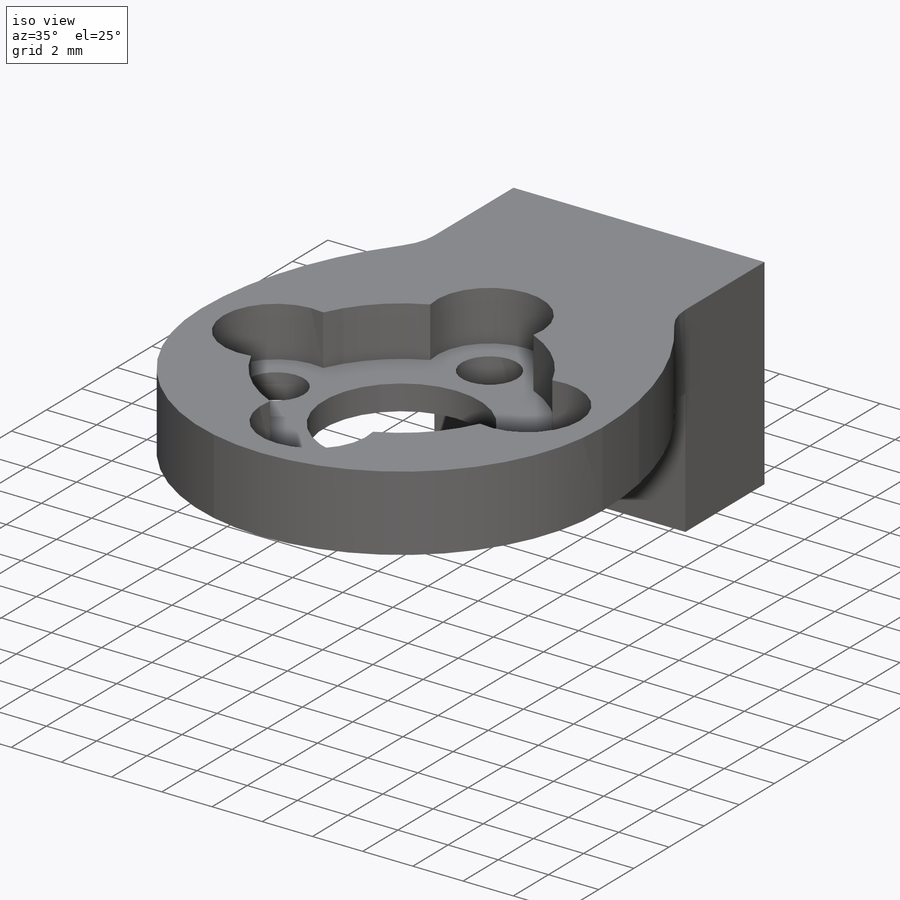
[diagram: iso view]
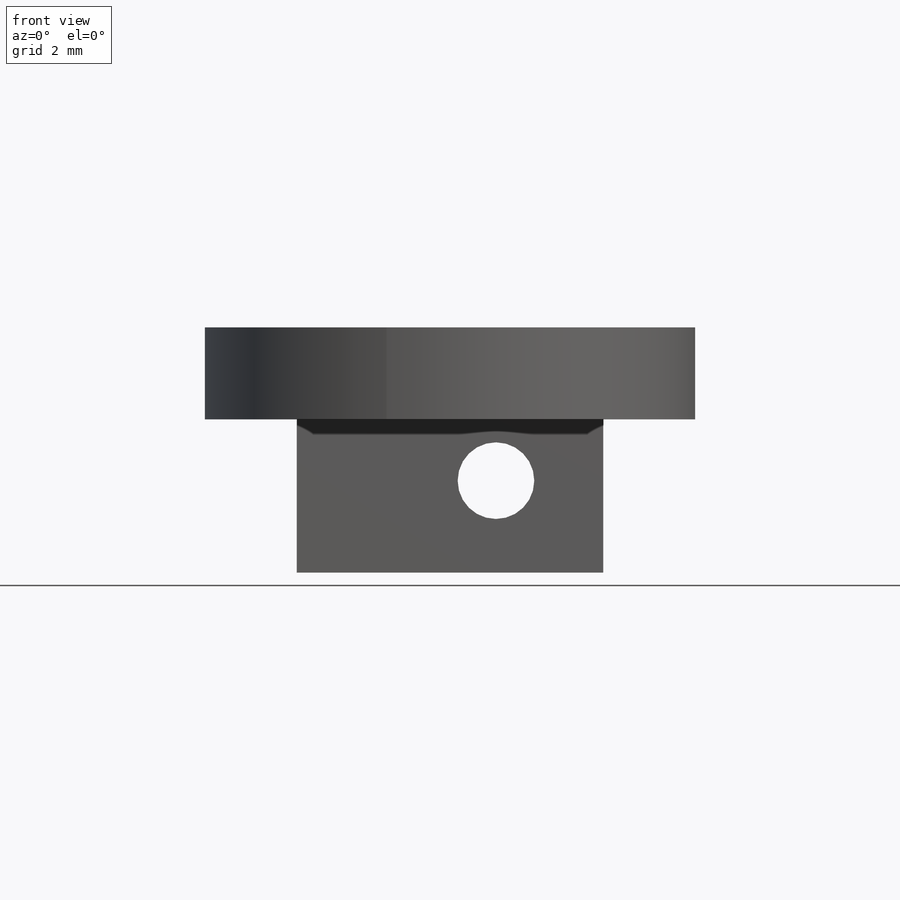
[diagram: front view]
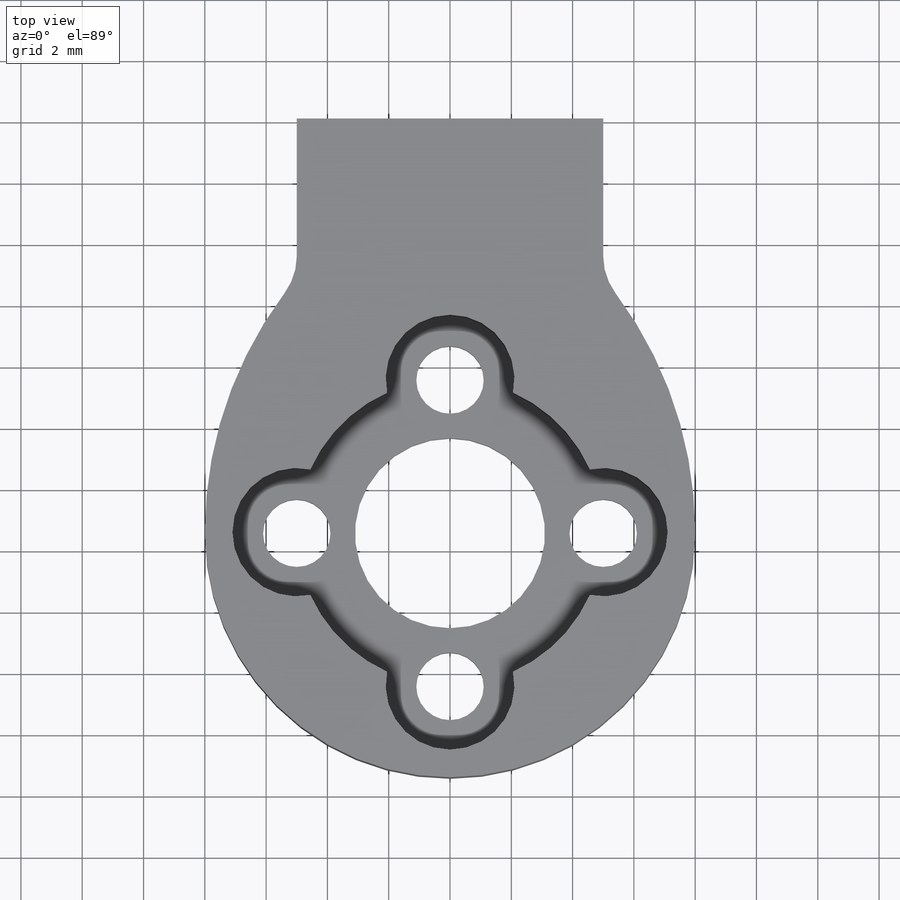
[diagram: top view]
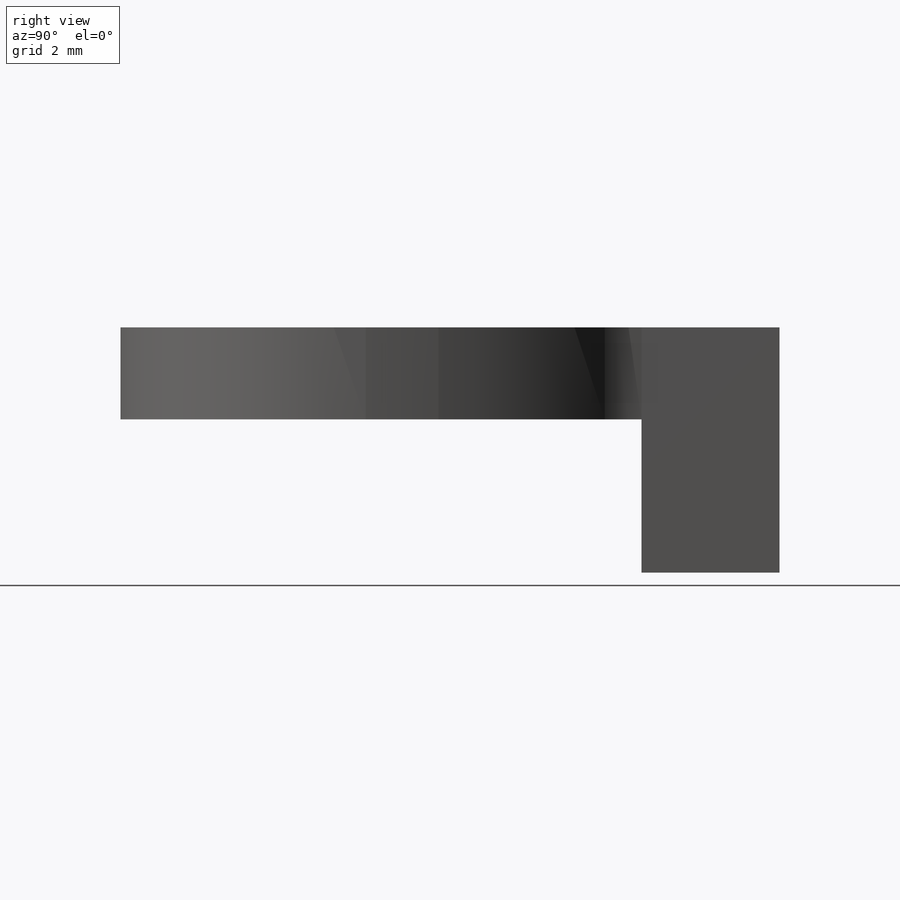
[diagram: right view]
SOLIDWORKS PART (.sldprt)
format: sldprt  version: not decoded by parser v0  size: 338,432 bytes
history: native  units: mm
features: sketch x13, hole x5, extrude x2, material x1, plane x1, cut_extrude x1, fillet x1 (+13 scaffold rows collapsed)
feature tree (37):
  scaffold x13  (default folders/planes/origin — collapsed)
  material  "Material <not specified>"
  plane  "Plane1"  Offset=3mm
  sketch  "Sketch1"
  extrude  "Boss-Extrude1"  Depth=3mm
  sketch  "Sketch2"
  extrude  "Boss-Extrude2"  Depth=5mm
  sketch  "Sketch3"
  cut_extrude  "Cut-Extrude1"  Depth=2mm
  hole  "Ø2.2 (2.2) Diameter Hole1"  Diameter=2.2mm Depth=6.000025mm
  sketch  "Sketch5"
  sketch  "Sketch4"  dims[hole-wizard template sketch: 60 standard entries collapsed; hole parameters kept: c18.Thru Hole Depth=~6.000025mm]
  hole  "Ø6.2 (6.2) Diameter Hole1"  Diameter=6.2mm Depth=3mm
  sketch  "Sketch7"
  sketch  "Sketch6"  dims[hole-wizard template sketch: 59 standard entries collapsed; hole parameters kept: c18.Thru Hole Dia.=6.2mm c18.Thru Hole Depth=3.0mm]
  hole  "Ø2.2 (2.2) Diameter Hole2"  Diameter=2.2mm Depth=3mm
  sketch  "Sketch9"
  sketch  "Sketch8"  dims[hole-wizard template sketch: 60 standard entries collapsed; hole parameters kept: c18.Thru Hole Depth=3.0mm]
  hole  "Ø2.5 (2.5) Diameter Hole1"  Diameter=2.5mm Depth=21.5mm
  sketch  "Sketch11"
  sketch  "Sketch10"  dims[hole-wizard template sketch: 60 standard entries collapsed; hole parameters kept: c18.Thru Hole Depth=21.5mm]
  hole  "Ø1.6 (1.6) Diameter Hole1"  Diameter=1.6mm Depth=4mm
  sketch  "Sketch13"
  sketch  "Sketch12"  dims[hole-wizard template sketch: 47 standard entries collapsed; hole parameters kept: c15.Hole Depth=4.0mm c15.D3=~14.816244mm c15.Drill Angle=118.0deg]
  fillet  "Fillet1"  Radius=2mm
decode coverage: 14 of 22 modeling features carry decoded parameters
note: ~ marks probable driven/reference dimensions
summary: Diameter pulled from absorbed wizard sketch
note: suppression state not decoded; provenance and decode notes live in map.json
